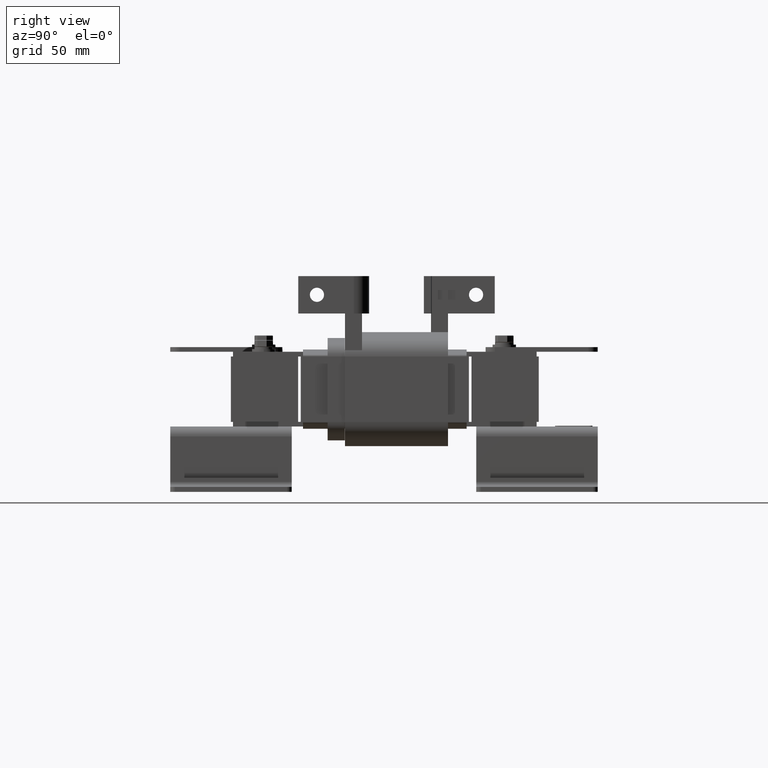
[diagram: clean part render]
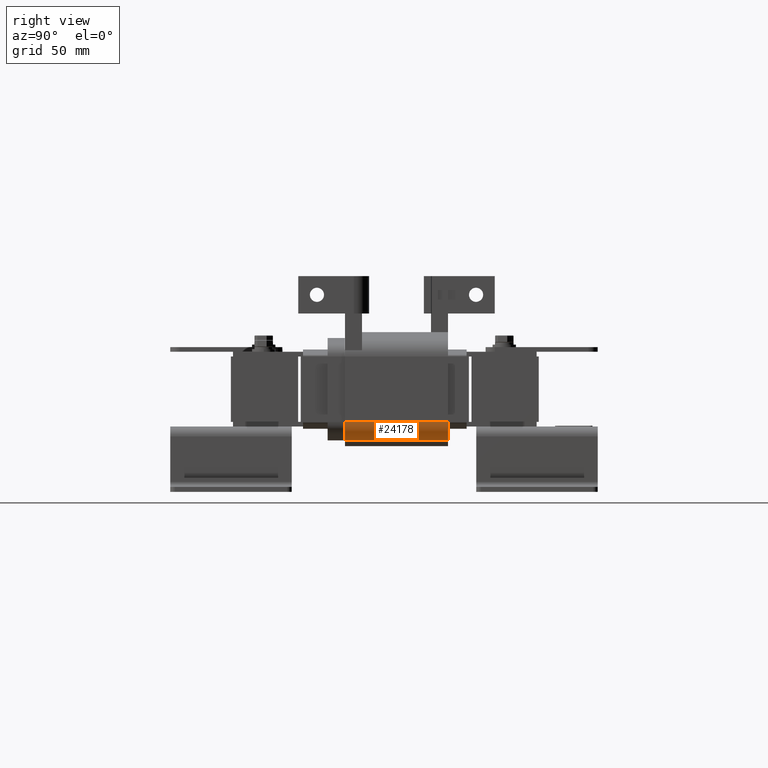
[diagram: same view with one face highlighted and labeled with its STEP entity id]
A machine part, right view. The second image highlights one B-rep face of the part: STEP entity #24178.
In plain terms, the highlighted cylindrical surface (edge-blend (fillet) strip) has radius 13.335 mm, axis along (0, -1, -0).
Its self-contained STEP definition (entity closure, byte-faithful):
#2862=FACE_OUTER_BOUND('',#4253,.T.);
#4253=EDGE_LOOP('',(#22189,#22190,#22191,#22192));
#6584=LINE('',#42165,#8963);
#6585=LINE('',#42168,#8964);
#8963=VECTOR('',#32526,0.393700787401575);
#8964=VECTOR('',#32529,0.393700787401575);
#9792=CIRCLE('',#26468,0.525000000000195);
#9793=CIRCLE('',#26469,0.525000000000195);
#12030=VERTEX_POINT('',#42161);
#12031=VERTEX_POINT('',#42162);
#12032=VERTEX_POINT('',#42164);
#12033=VERTEX_POINT('',#42166);
#15446=EDGE_CURVE('',#12030,#12031,#9792,.T.);
#15447=EDGE_CURVE('',#12031,#12032,#6584,.T.);
#15448=EDGE_CURVE('',#12033,#12032,#9793,.T.);
#15449=EDGE_CURVE('',#12030,#12033,#6585,.T.);
#22189=ORIENTED_EDGE('',*,*,#15446,.T.);
#22190=ORIENTED_EDGE('',*,*,#15447,.T.);
#22191=ORIENTED_EDGE('',*,*,#15448,.F.);
#22192=ORIENTED_EDGE('',*,*,#15449,.F.);
#22934=CYLINDRICAL_SURFACE('',#26467,0.525000000000195);
#24178=ADVANCED_FACE('',(#2862),#22934,.T.);
#26467=AXIS2_PLACEMENT_3D('',#42160,#32522,#32523);
#26468=AXIS2_PLACEMENT_3D('',#42163,#32524,#32525);
#26469=AXIS2_PLACEMENT_3D('',#42167,#32527,#32528);
#32522=DIRECTION('center_axis',(0.,0.,1.));
#32523=DIRECTION('ref_axis',(-0.954901684782003,-0.296922165559414,0.));
#32524=DIRECTION('center_axis',(0.,0.,1.));
#32525=DIRECTION('ref_axis',(-0.954901684782003,-0.296922165559414,0.));
#32526=DIRECTION('',(0.,0.,1.));
#32527=DIRECTION('center_axis',(0.,0.,1.));
#32528=DIRECTION('ref_axis',(-0.954901684782003,-0.296922165559414,0.));
#32529=DIRECTION('',(0.,0.,1.));
#42160=CARTESIAN_POINT('Origin',(4.02825194450213E-10,-2.29500000150099,
0.));
#42161=CARTESIAN_POINT('',(-0.501323384107912,-2.45088413841974,0.));
#42162=CARTESIAN_POINT('',(4.33503293381206E-10,-2.82000000150118,0.));
#42163=CARTESIAN_POINT('Origin',(4.02825194450213E-10,-2.29500000150099,
0.));
#42164=CARTESIAN_POINT('',(4.33503293381206E-10,-2.82000000150118,2.755));
#42165=CARTESIAN_POINT('',(4.33503293381206E-10,-2.82000000150118,0.));
#42166=CARTESIAN_POINT('',(-0.501323384107912,-2.45088413841974,2.755));
#42167=CARTESIAN_POINT('Origin',(4.02825194450213E-10,-2.29500000150099,
2.755));
#42168=CARTESIAN_POINT('',(-0.501323384107912,-2.45088413841974,0.));